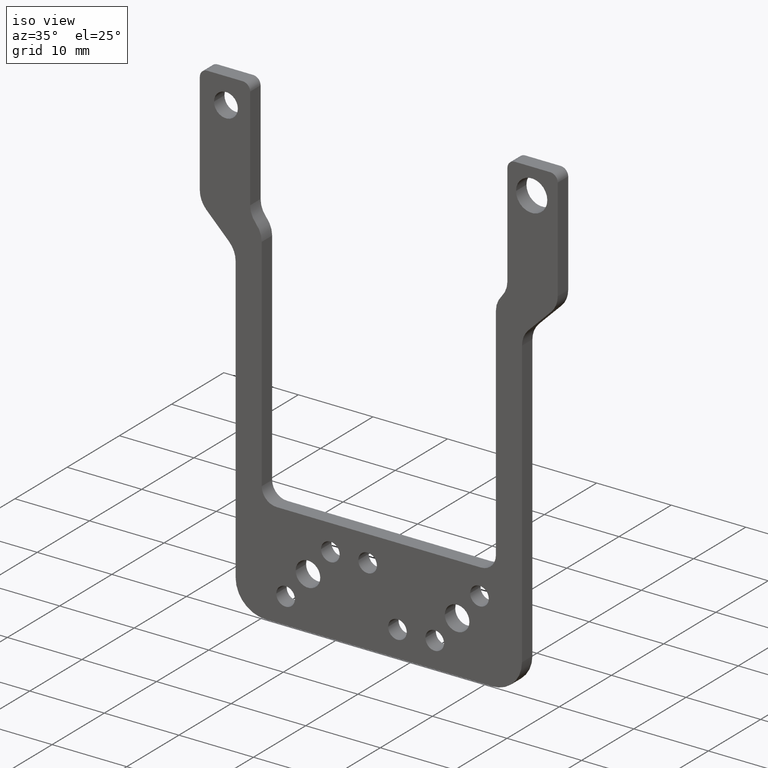
[diagram: clean part render]
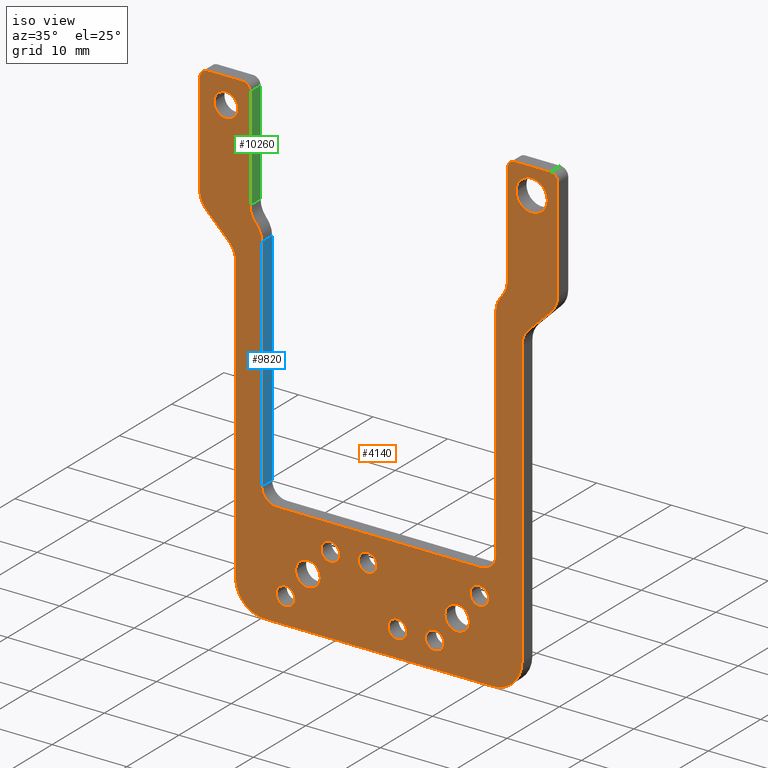
[diagram: same view with three faces highlighted in distinct colors, each labeled with its STEP entity id]
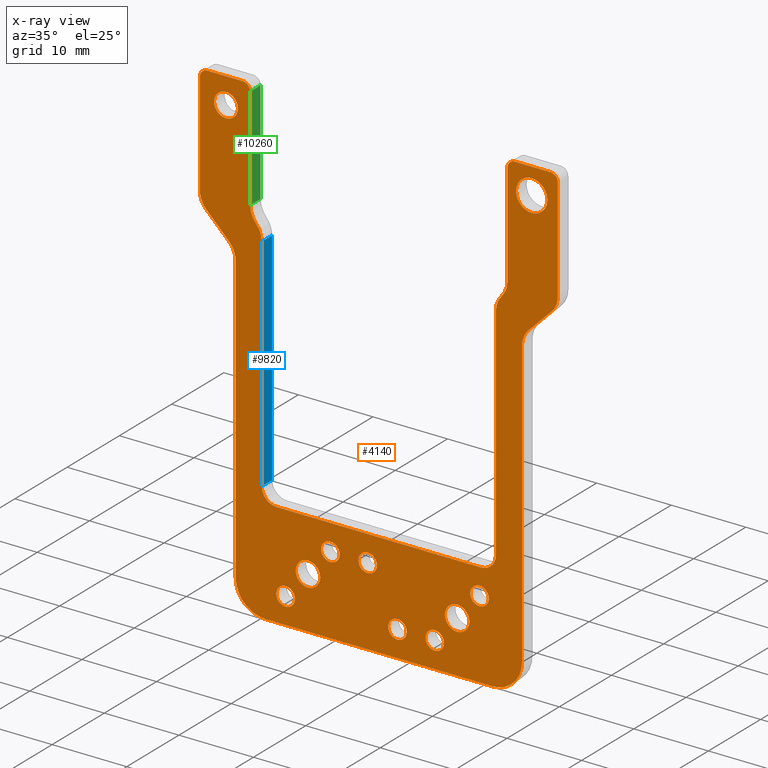
[diagram: x-ray of the same camera — body ghosted, the three highlighted faces saturated]
A machine part, iso view with three faces highlighted in distinct colors.
The next image is the same camera in x-ray (body ghosted, the three faces saturated) — at least one of them is partly hidden behind the body in this view.
Their STEP definitions:

[orange] entity #4140 — the highlighted planar face has unit normal (0, -1, -0).
#10=CARTESIAN_POINT('',(-14.519346833454,-1.02879474695072E-13,
-29.025690549749));
#20=DIRECTION('',(0.,1.,-3.51436609374757E-15));
#30=DIRECTION('',(1.,0.,0.));
#40=AXIS2_PLACEMENT_3D('',#10,#20,#30);
#50=PLANE('',#40);
#60=CARTESIAN_POINT('',(1.5,-1.77996623104301E-13,-50.3999999999996));
#70=DIRECTION('',(0.,1.,-3.51436609374757E-15));
#80=DIRECTION('',(1.,0.,0.));
#90=AXIS2_PLACEMENT_3D('',#60,#70,#80);
#100=CIRCLE('',#90,1.25);
#110=CARTESIAN_POINT('',(2.75,-1.77996506423028E-13,-50.3999999999996));
#120=VERTEX_POINT('',#110);
#130=CARTESIAN_POINT('',(0.249999999999996,-1.77996506423028E-13,
-50.3999999999996));
#140=VERTEX_POINT('',#130);
#150=EDGE_CURVE('',#120,#140,#100,.T.);
#160=ORIENTED_EDGE('',*,*,#150,.F.);
#170=EDGE_CURVE('',#140,#120,#100,.T.);
#180=ORIENTED_EDGE('',*,*,#170,.F.);
#190=EDGE_LOOP('',(#180,#160));
#200=FACE_BOUND('',#190,.T.);
#210=CARTESIAN_POINT('',(12.5,-2.02597185760534E-13,-57.3999999999994));
#220=DIRECTION('',(0.,1.,-3.51436609374757E-15));
#230=DIRECTION('',(1.,0.,0.));
#240=AXIS2_PLACEMENT_3D('',#210,#220,#230);
#250=CIRCLE('',#240,1.25);
#260=CARTESIAN_POINT('',(13.75,-2.02587946418475E-13,-57.3999999999994))
;
#270=VERTEX_POINT('',#260);
#280=CARTESIAN_POINT('',(11.25,-2.02587946418475E-13,-57.3999999999994))
;
#290=VERTEX_POINT('',#280);
#300=EDGE_CURVE('',#270,#290,#250,.T.);
#310=ORIENTED_EDGE('',*,*,#300,.F.);
#320=EDGE_CURVE('',#290,#270,#250,.T.);
#330=ORIENTED_EDGE('',*,*,#320,.F.);
#340=EDGE_LOOP('',(#330,#310));
#350=FACE_BOUND('',#340,.T.);
#360=CARTESIAN_POINT('',(9.5,-1.90296904432417E-13,-53.8999999999994));
#370=DIRECTION('',(0.,-1.,3.51436609374757E-15));
#380=DIRECTION('',(-1.,0.,-0.));
#390=AXIS2_PLACEMENT_3D('',#360,#370,#380);
#400=CIRCLE('',#390,1.65);
#410=CARTESIAN_POINT('',(7.85,-1.90292226420752E-13,-53.8999999999994));
#420=VERTEX_POINT('',#410);
#430=CARTESIAN_POINT('',(11.15,-1.90292226420752E-13,-53.8999999999994))
;
#440=VERTEX_POINT('',#430);
#450=EDGE_CURVE('',#420,#440,#400,.T.);
#460=ORIENTED_EDGE('',*,*,#450,.T.);
#470=EDGE_CURVE('',#440,#420,#400,.T.);
#480=ORIENTED_EDGE('',*,*,#470,.T.);
#490=EDGE_LOOP('',(#480,#460));
#500=FACE_BOUND('',#490,.T.);
#510=CARTESIAN_POINT('',(-13.5,-1.77996623104301E-13,-50.3999999999996))
;
#520=DIRECTION('',(0.,1.,-3.51436609374757E-15));
#530=DIRECTION('',(1.,0.,0.));
#540=AXIS2_PLACEMENT_3D('',#510,#520,#530);
#550=CIRCLE('',#540,1.25);
#560=CARTESIAN_POINT('',(-12.25,-1.77996506423028E-13,-50.3999999999996)
);
#570=VERTEX_POINT('',#560);
#580=CARTESIAN_POINT('',(-14.75,-1.77996506423028E-13,-50.3999999999996)
);
#590=VERTEX_POINT('',#580);
#600=EDGE_CURVE('',#570,#590,#550,.T.);
#610=ORIENTED_EDGE('',*,*,#600,.F.);
#620=EDGE_CURVE('',#590,#570,#550,.T.);
#630=ORIENTED_EDGE('',*,*,#620,.F.);
#640=EDGE_LOOP('',(#630,#610));
#650=FACE_BOUND('',#640,.T.);
#660=CARTESIAN_POINT('',(6.5,-1.77996623104301E-13,-50.3999999999996));
#670=DIRECTION('',(0.,1.,-3.51436609374757E-15));
#680=DIRECTION('',(1.,0.,0.));
#690=AXIS2_PLACEMENT_3D('',#660,#670,#680);
#700=CIRCLE('',#690,1.25);
#710=CARTESIAN_POINT('',(7.75,-1.77996506423028E-13,-50.3999999999996));
#720=VERTEX_POINT('',#710);
#730=CARTESIAN_POINT('',(5.25,-1.77996506423028E-13,-50.3999999999996));
#740=VERTEX_POINT('',#730);
#750=EDGE_CURVE('',#720,#740,#700,.T.);
#760=ORIENTED_EDGE('',*,*,#750,.F.);
#770=EDGE_CURVE('',#740,#720,#700,.T.);
#780=ORIENTED_EDGE('',*,*,#770,.F.);
#790=EDGE_LOOP('',(#780,#760));
#800=FACE_BOUND('',#790,.T.);
#810=CARTESIAN_POINT('',(-7.5,-2.02597185760534E-13,-57.3999999999994));
#820=DIRECTION('',(0.,1.,-3.51436609374757E-15));
#830=DIRECTION('',(1.,0.,0.));
#840=AXIS2_PLACEMENT_3D('',#810,#820,#830);
#850=CIRCLE('',#840,1.25);
#860=CARTESIAN_POINT('',(-6.25,-2.02587946418475E-13,-57.3999999999994))
;
#870=VERTEX_POINT('',#860);
#880=CARTESIAN_POINT('',(-8.75,-2.02587946418475E-13,-57.3999999999994))
;
#890=VERTEX_POINT('',#880);
#900=EDGE_CURVE('',#870,#890,#850,.T.);
#910=ORIENTED_EDGE('',*,*,#900,.F.);
#920=EDGE_CURVE('',#890,#870,#850,.T.);
#930=ORIENTED_EDGE('',*,*,#920,.F.);
#940=EDGE_LOOP('',(#930,#910));
#950=FACE_BOUND('',#940,.T.);
#960=CARTESIAN_POINT('',(-2.5,-2.02597185760534E-13,-57.3999999999994));
#970=DIRECTION('',(0.,1.,-3.51436609374757E-15));
#980=DIRECTION('',(1.,0.,0.));
#990=AXIS2_PLACEMENT_3D('',#960,#970,#980);
#1000=CIRCLE('',#990,1.25);
#1010=CARTESIAN_POINT('',(-1.25,-2.02587946418475E-13,-57.3999999999994)
);
#1020=VERTEX_POINT('',#1010);
#1030=CARTESIAN_POINT('',(-3.75,-2.02587946418475E-13,-57.3999999999994)
);
#1040=VERTEX_POINT('',#1030);
#1050=EDGE_CURVE('',#1020,#1040,#1000,.T.);
#1060=ORIENTED_EDGE('',*,*,#1050,.F.);
#1070=EDGE_CURVE('',#1040,#1020,#1000,.T.);
#1080=ORIENTED_EDGE('',*,*,#1070,.F.);
#1090=EDGE_LOOP('',(#1080,#1060));
#1100=FACE_BOUND('',#1090,.T.);
#1110=CARTESIAN_POINT('',(-10.5,-1.90296904432417E-13,-53.8999999999994)
);
#1120=DIRECTION('',(0.,-1.,3.51436609374757E-15));
#1130=DIRECTION('',(-1.,0.,-0.));
#1140=AXIS2_PLACEMENT_3D('',#1110,#1120,#1130);
#1150=CIRCLE('',#1140,1.65);
#1160=CARTESIAN_POINT('',(-12.15,-1.90292226420752E-13,-53.8999999999994
));
#1170=VERTEX_POINT('',#1160);
#1180=CARTESIAN_POINT('',(-8.85,-1.90292226420752E-13,-53.8999999999994)
);
#1190=VERTEX_POINT('',#1180);
#1200=EDGE_CURVE('',#1170,#1190,#1150,.T.);
#1210=ORIENTED_EDGE('',*,*,#1200,.T.);
#1220=EDGE_CURVE('',#1190,#1170,#1150,.T.);
#1230=ORIENTED_EDGE('',*,*,#1220,.T.);
#1240=EDGE_LOOP('',(#1230,#1210));
#1250=FACE_BOUND('',#1240,.T.);
#1260=CARTESIAN_POINT('',(20.5,-8.72571979425161E-16,
-3.5527136788005E-15));
#1270=DIRECTION('',(0.,1.,-3.51436609374757E-15));
#1280=DIRECTION('',(1.,0.,0.));
#1290=AXIS2_PLACEMENT_3D('',#1260,#1270,#1280);
#1300=CIRCLE('',#1290,1.6);
#1310=CARTESIAN_POINT('',(22.1,-8.72571979425161E-16,
-3.5527136788005E-15));
#1320=VERTEX_POINT('',#1310);
#1330=CARTESIAN_POINT('',(18.9,-8.72571979425162E-16,
-3.74865716666408E-15));
#1340=VERTEX_POINT('',#1330);
#1350=EDGE_CURVE('',#1320,#1340,#1300,.T.);
#1360=ORIENTED_EDGE('',*,*,#1350,.F.);
#1370=EDGE_CURVE('',#1340,#1320,#1300,.T.);
#1380=ORIENTED_EDGE('',*,*,#1370,.F.);
#1390=EDGE_LOOP('',(#1380,#1360));
#1400=FACE_BOUND('',#1390,.T.);
#1410=CARTESIAN_POINT('',(-20.5,-8.72571979425111E-16,
1.06581410364015E-14));
#1420=DIRECTION('',(0.,1.,-3.51436609374757E-15));
#1430=DIRECTION('',(1.,0.,0.));
#1440=AXIS2_PLACEMENT_3D('',#1410,#1420,#1430);
#1450=CIRCLE('',#1440,2.1);
#1460=CARTESIAN_POINT('',(-18.4,-8.72571979425111E-16,
1.06581410364015E-14));
#1470=VERTEX_POINT('',#1460);
#1480=CARTESIAN_POINT('',(-22.6,-8.72571979425112E-16,
1.04009652085806E-14));
#1490=VERTEX_POINT('',#1480);
#1500=EDGE_CURVE('',#1470,#1490,#1450,.T.);
#1510=ORIENTED_EDGE('',*,*,#1500,.F.);
#1520=EDGE_CURVE('',#1490,#1470,#1450,.T.);
#1530=ORIENTED_EDGE('',*,*,#1520,.F.);
#1540=EDGE_LOOP('',(#1530,#1510));
#1550=FACE_BOUND('',#1540,.T.);
#1560=CARTESIAN_POINT('',(-21.,-4.04350538537465E-14,-11.2573593128807))
;
#1570=DIRECTION('',(0.,-1.,3.51436609374757E-15));
#1580=DIRECTION('',(-1.,0.,-0.));
#1590=AXIS2_PLACEMENT_3D('',#1560,#1570,#1580);
#1600=CIRCLE('',#1590,3.);
#1610=CARTESIAN_POINT('',(-24.,-4.04350538537465E-14,-11.2573593128807))
;
#1620=VERTEX_POINT('',#1610);
#1630=CARTESIAN_POINT('',(-23.1213203435596,-4.78901501431295E-14,
-13.3786796564403));
#1640=VERTEX_POINT('',#1630);
#1650=EDGE_CURVE('',#1620,#1640,#1600,.T.);
#1660=ORIENTED_EDGE('',*,*,#1650,.F.);
#1670=CARTESIAN_POINT('',(-14.519346833454,-7.79066304868271E-14,
-21.980653166546));
#1680=DIRECTION('',(0.707106781186548,-2.48503209646098E-15,
-0.707106781186547));
#1690=VECTOR('',#1680,1.);
#1700=LINE('',#1670,#1690);
#1710=CARTESIAN_POINT('',(-20.0786796564404,-5.85831034093983E-14,
-16.4213203435596));
#1720=VERTEX_POINT('',#1710);
#1730=EDGE_CURVE('',#1640,#1720,#1700,.T.);
#1740=ORIENTED_EDGE('',*,*,#1730,.F.);
#1750=CARTESIAN_POINT('',(-22.2,-6.60381996987813E-14,-18.5426406871193)
);
#1760=DIRECTION('',(0.,-1.,3.51436609374757E-15));
#1770=DIRECTION('',(-1.,0.,-0.));
#1780=AXIS2_PLACEMENT_3D('',#1750,#1760,#1770);
#1790=CIRCLE('',#1780,3.);
#1800=CARTESIAN_POINT('',(-19.2,-6.60381996987813E-14,-18.5426406871193)
);
#1810=VERTEX_POINT('',#1800);
#1820=EDGE_CURVE('',#1810,#1720,#1790,.T.);
#1830=ORIENTED_EDGE('',*,*,#1820,.T.);
#1840=CARTESIAN_POINT('',(-19.2,-1.02879474695072E-13,-29.025690549749))
;
#1850=DIRECTION('',(0.,-3.51436609374757E-15,-1.));
#1860=VECTOR('',#1850,1.);
#1870=LINE('',#1840,#1860);
#1880=CARTESIAN_POINT('',(-19.2,-2.0084000271366E-13,-56.8999999999994))
;
#1890=VERTEX_POINT('',#1880);
#1900=EDGE_CURVE('',#1810,#1890,#1870,.T.);
#1910=ORIENTED_EDGE('',*,*,#1900,.F.);
#1920=CARTESIAN_POINT('',(-15.2,-2.0084000271366E-13,-56.8999999999994))
;
#1930=DIRECTION('',(0.,1.,-3.51436609374757E-15));
#1940=DIRECTION('',(1.,0.,0.));
#1950=AXIS2_PLACEMENT_3D('',#1920,#1930,#1940);
#1960=CIRCLE('',#1950,4.);
#1970=CARTESIAN_POINT('',(-15.2,-2.1489746708865E-13,-60.8999999999994))
;
#1980=VERTEX_POINT('',#1970);
#1990=EDGE_CURVE('',#1980,#1890,#1960,.T.);
#2000=ORIENTED_EDGE('',*,*,#1990,.T.);
#2010=CARTESIAN_POINT('',(-14.519346833454,-2.1489746708865E-13,
-60.8999999999994));
#2020=DIRECTION('',(1.,0.,0.));
#2030=VECTOR('',#2020,1.);
#2040=LINE('',#2010,#2030);
#2050=CARTESIAN_POINT('',(15.2,-2.1489746708865E-13,-60.8999999999994));
#2060=VERTEX_POINT('',#2050);
#2070=EDGE_CURVE('',#1980,#2060,#2040,.T.);
#2080=ORIENTED_EDGE('',*,*,#2070,.F.);
#2090=CARTESIAN_POINT('',(15.2,-2.0084000271366E-13,-56.8999999999994));
#2100=DIRECTION('',(0.,1.,-3.51436609374757E-15));
#2110=DIRECTION('',(1.,0.,0.));
#2120=AXIS2_PLACEMENT_3D('',#2090,#2100,#2110);
#2130=CIRCLE('',#2120,4.);
#2140=CARTESIAN_POINT('',(19.2,-2.0084000271366E-13,-56.8999999999994));
#2150=VERTEX_POINT('',#2140);
#2160=EDGE_CURVE('',#2150,#2060,#2130,.T.);
#2170=ORIENTED_EDGE('',*,*,#2160,.T.);
#2180=CARTESIAN_POINT('',(19.2,-1.02879474695072E-13,-29.025690549749));
#2190=DIRECTION('',(0.,3.51436609374757E-15,1.));
#2200=VECTOR('',#2190,1.);
#2210=LINE('',#2180,#2200);
#2220=CARTESIAN_POINT('',(19.2,-6.60381996987813E-14,-18.5426406871193))
;
#2230=VERTEX_POINT('',#2220);
#2240=EDGE_CURVE('',#2150,#2230,#2210,.T.);
#2250=ORIENTED_EDGE('',*,*,#2240,.F.);
#2260=CARTESIAN_POINT('',(22.2,-6.60381996987813E-14,-18.5426406871193))
;
#2270=DIRECTION('',(0.,-1.,3.51436609374757E-15));
#2280=DIRECTION('',(-1.,0.,-0.));
#2290=AXIS2_PLACEMENT_3D('',#2260,#2270,#2280);
#2300=CIRCLE('',#2290,3.);
#2310=CARTESIAN_POINT('',(20.0786796564404,-5.85831034093983E-14,
-16.4213203435596));
#2320=VERTEX_POINT('',#2310);
#2330=EDGE_CURVE('',#2320,#2230,#2300,.T.);
#2340=ORIENTED_EDGE('',*,*,#2330,.T.);
#2350=CARTESIAN_POINT('',(1.47430945025101,-1.23751667558025E-13,
-35.025690549749));
#2360=DIRECTION('',(-0.707106781186548,-2.48503209646099E-15,
-0.707106781186548));
#2370=VECTOR('',#2360,1.);
#2380=LINE('',#2350,#2370);
#2390=CARTESIAN_POINT('',(23.1213203435597,-4.78901501431294E-14,
-13.3786796564403));
#2400=VERTEX_POINT('',#2390);
#2410=EDGE_CURVE('',#2400,#2320,#2380,.T.);
#2420=ORIENTED_EDGE('',*,*,#2410,.T.);
#2430=CARTESIAN_POINT('',(21.,-4.04350538537465E-14,-11.2573593128807));
#2440=DIRECTION('',(0.,1.,-3.51436609374757E-15));
#2450=DIRECTION('',(1.,0.,0.));
#2460=AXIS2_PLACEMENT_3D('',#2430,#2440,#2450);
#2470=CIRCLE('',#2460,3.);
#2480=CARTESIAN_POINT('',(24.,-4.04350538537465E-14,-11.2573593128807));
#2490=VERTEX_POINT('',#2480);
#2500=EDGE_CURVE('',#2490,#2400,#2470,.T.);
#2510=ORIENTED_EDGE('',*,*,#2500,.T.);
#2520=CARTESIAN_POINT('',(24.,1.14277093486914E-14,3.50000000000001));
#2530=DIRECTION('',(0.,-3.51436609374757E-15,-1.));
#2540=VECTOR('',#2530,1.);
#2550=LINE('',#2520,#2540);
#2560=CARTESIAN_POINT('',(24.,7.9133432549438E-15,2.50000000000001));
#2570=VERTEX_POINT('',#2560);
#2580=EDGE_CURVE('',#2570,#2490,#2550,.T.);
#2590=ORIENTED_EDGE('',*,*,#2580,.T.);
#2600=CARTESIAN_POINT('',(23.,7.9133432549438E-15,2.50000000000001));
#2610=DIRECTION('',(0.,1.,-3.51436609374757E-15));
#2620=DIRECTION('',(1.,0.,0.));
#2630=AXIS2_PLACEMENT_3D('',#2600,#2610,#2620);
#2640=CIRCLE('',#2630,1.);
#2650=CARTESIAN_POINT('',(23.,1.14277093486914E-14,3.50000000000001));
#2660=VERTEX_POINT('',#2650);
#2670=EDGE_CURVE('',#2660,#2570,#2640,.T.);
#2680=ORIENTED_EDGE('',*,*,#2670,.T.);
#2690=CARTESIAN_POINT('',(17.25,1.14277093486914E-14,3.50000000000001));
#2700=DIRECTION('',(1.,0.,0.));
#2710=VECTOR('',#2700,1.);
#2720=LINE('',#2690,#2710);
#2730=CARTESIAN_POINT('',(18.25,1.14277093486914E-14,3.50000000000001));
#2740=VERTEX_POINT('',#2730);
#2750=EDGE_CURVE('',#2740,#2660,#2720,.T.);
#2760=ORIENTED_EDGE('',*,*,#2750,.T.);
#2770=CARTESIAN_POINT('',(18.25,7.9133432549438E-15,2.50000000000001));
#2780=DIRECTION('',(0.,1.,-3.51436609374757E-15));
#2790=DIRECTION('',(1.,0.,0.));
#2800=AXIS2_PLACEMENT_3D('',#2770,#2780,#2790);
#2810=CIRCLE('',#2800,1.);
#2820=CARTESIAN_POINT('',(17.25,7.9133432549438E-15,2.50000000000001));
#2830=VERTEX_POINT('',#2820);
#2840=EDGE_CURVE('',#2830,#2740,#2810,.T.);
#2850=ORIENTED_EDGE('',*,*,#2840,.T.);
#2860=CARTESIAN_POINT('',(17.25,1.14277093486914E-14,3.50000000000001));
#2870=DIRECTION('',(0.,-3.51436609374757E-15,-1.));
#2880=VECTOR('',#2870,1.);
#2890=LINE('',#2860,#2880);
#2900=CARTESIAN_POINT('',(17.25,-4.04725507051159E-14,-11.2680289045991)
);
#2910=VERTEX_POINT('',#2900);
#2920=EDGE_CURVE('',#2830,#2910,#2890,.T.);
#2930=ORIENTED_EDGE('',*,*,#2920,.F.);
#2940=CARTESIAN_POINT('',(14.25,-4.04725507051159E-14,-11.2680289045991)
);
#2950=DIRECTION('',(0.,-1.,3.51436609374757E-15));
#2960=DIRECTION('',(-1.,0.,-0.));
#2970=AXIS2_PLACEMENT_3D('',#2940,#2950,#2960);
#2980=CIRCLE('',#2970,3.);
#2990=CARTESIAN_POINT('',(16.475,-4.75445302996088E-14,-13.2803347958592
));
#3000=VERTEX_POINT('',#2990);
#3010=EDGE_CURVE('',#3000,#2910,#2980,.T.);
#3020=ORIENTED_EDGE('',*,*,#3010,.T.);
#3030=CARTESIAN_POINT('',(18.7,-5.46165098941017E-14,-15.2926406871193))
;
#3040=DIRECTION('',(0.,-1.,3.51436609374757E-15));
#3050=DIRECTION('',(-1.,0.,-0.));
#3060=AXIS2_PLACEMENT_3D('',#3030,#3040,#3050);
#3070=CIRCLE('',#3060,3.);
#3080=CARTESIAN_POINT('',(15.7,-5.46165098941017E-14,-15.2926406871193))
;
#3090=VERTEX_POINT('',#3080);
#3100=EDGE_CURVE('',#3000,#3090,#3070,.T.);
#3110=ORIENTED_EDGE('',*,*,#3100,.F.);
#3120=CARTESIAN_POINT('',(15.7,-3.43683076926286E-14,-9.53108891324553))
;
#3130=DIRECTION('',(0.,-3.51436609374757E-15,-1.));
#3140=VECTOR('',#3130,1.);
#3150=LINE('',#3120,#3140);
#3160=CARTESIAN_POINT('',(15.7,-1.5866760958869E-13,-44.8999999999996));
#3170=VERTEX_POINT('',#3160);
#3180=EDGE_CURVE('',#3090,#3170,#3150,.T.);
#3190=ORIENTED_EDGE('',*,*,#3180,.F.);
#3200=CARTESIAN_POINT('',(13.7,-1.5866760958869E-13,-44.8999999999996));
#3210=DIRECTION('',(0.,-1.,3.51436609374757E-15));
#3220=DIRECTION('',(-1.,0.,-0.));
#3230=AXIS2_PLACEMENT_3D('',#3200,#3210,#3220);
#3240=CIRCLE('',#3230,2.);
#3250=CARTESIAN_POINT('',(13.7,-1.65696341776185E-13,-46.8999999999996))
;
#3260=VERTEX_POINT('',#3250);
#3270=EDGE_CURVE('',#3260,#3170,#3240,.T.);
#3280=ORIENTED_EDGE('',*,*,#3270,.T.);
#3290=CARTESIAN_POINT('',(-15.5,-1.65830682704287E-13,-46.8999999999996)
);
#3300=DIRECTION('',(1.,0.,0.));
#3310=VECTOR('',#3300,1.);
#3320=LINE('',#3290,#3310);
#3330=CARTESIAN_POINT('',(-13.7,-1.65696341776185E-13,-46.8999999999996)
);
#3340=VERTEX_POINT('',#3330);
#3350=EDGE_CURVE('',#3340,#3260,#3320,.T.);
#3360=ORIENTED_EDGE('',*,*,#3350,.T.);
#3370=CARTESIAN_POINT('',(-13.7,-1.5866760958869E-13,-44.8999999999996))
;
#3380=DIRECTION('',(0.,-1.,3.51436609374757E-15));
#3390=DIRECTION('',(-1.,0.,-0.));
#3400=AXIS2_PLACEMENT_3D('',#3370,#3380,#3390);
#3410=CIRCLE('',#3400,2.);
#3420=CARTESIAN_POINT('',(-15.7,-1.5866760958869E-13,-44.8999999999996))
;
#3430=VERTEX_POINT('',#3420);
#3440=EDGE_CURVE('',#3430,#3340,#3410,.T.);
#3450=ORIENTED_EDGE('',*,*,#3440,.T.);
#3460=CARTESIAN_POINT('',(-15.7,-3.43683076926286E-14,-9.53108891324553)
);
#3470=DIRECTION('',(1.1119514927998E-17,-3.51436609374757E-15,-1.));
#3480=VECTOR('',#3470,1.);
#3490=LINE('',#3460,#3480);
#3500=CARTESIAN_POINT('',(-15.7,-5.45790130427323E-14,-15.2819710954009)
);
#3510=VERTEX_POINT('',#3500);
#3520=EDGE_CURVE('',#3510,#3430,#3490,.T.);
#3530=ORIENTED_EDGE('',*,*,#3520,.T.);
#3540=CARTESIAN_POINT('',(-18.7,-5.45790130427323E-14,-15.2819710954009)
);
#3550=DIRECTION('',(0.,-1.,3.51436609374757E-15));
#3560=DIRECTION('',(-1.,0.,-0.));
#3570=AXIS2_PLACEMENT_3D('',#3540,#3550,#3560);
#3580=CIRCLE('',#3570,3.);
#3590=CARTESIAN_POINT('',(-16.475,-4.75070334482394E-14,
-13.2696652041408));
#3600=VERTEX_POINT('',#3590);
#3610=EDGE_CURVE('',#3510,#3600,#3580,.T.);
#3620=ORIENTED_EDGE('',*,*,#3610,.F.);
#3630=CARTESIAN_POINT('',(-14.25,-4.04350538537465E-14,-11.2573593128807
));
#3640=DIRECTION('',(0.,-1.,3.51436609374757E-15));
#3650=DIRECTION('',(-1.,0.,-0.));
#3660=AXIS2_PLACEMENT_3D('',#3630,#3640,#3650);
#3670=CIRCLE('',#3660,3.);
#3680=CARTESIAN_POINT('',(-17.25,-4.04350538537465E-14,-11.2573593128807
));
#3690=VERTEX_POINT('',#3680);
#3700=EDGE_CURVE('',#3690,#3600,#3670,.T.);
#3710=ORIENTED_EDGE('',*,*,#3700,.T.);
#3720=CARTESIAN_POINT('',(-17.25,1.14277093486914E-14,3.50000000000001))
;
#3730=DIRECTION('',(0.,-3.51436609374757E-15,-1.));
#3740=VECTOR('',#3730,1.);
#3750=LINE('',#3720,#3740);
#3760=CARTESIAN_POINT('',(-17.25,7.9133432549438E-15,2.50000000000001));
#3770=VERTEX_POINT('',#3760);
#3780=EDGE_CURVE('',#3770,#3690,#3750,.T.);
#3790=ORIENTED_EDGE('',*,*,#3780,.T.);
#3800=CARTESIAN_POINT('',(-18.25,7.9133432549438E-15,2.50000000000001));
#3810=DIRECTION('',(0.,1.,-3.51436609374757E-15));
#3820=DIRECTION('',(1.,0.,0.));
#3830=AXIS2_PLACEMENT_3D('',#3800,#3810,#3820);
#3840=CIRCLE('',#3830,1.);
#3850=CARTESIAN_POINT('',(-18.25,1.14277093486914E-14,3.50000000000001))
;
#3860=VERTEX_POINT('',#3850);
#3870=EDGE_CURVE('',#3860,#3770,#3840,.T.);
#3880=ORIENTED_EDGE('',*,*,#3870,.T.);
#3890=CARTESIAN_POINT('',(-24.,1.14277093486914E-14,3.50000000000001));
#3900=DIRECTION('',(1.,0.,0.));
#3910=VECTOR('',#3900,1.);
#3920=LINE('',#3890,#3910);
#3930=CARTESIAN_POINT('',(-23.,1.14277093486914E-14,3.50000000000001));
#3940=VERTEX_POINT('',#3930);
#3950=EDGE_CURVE('',#3940,#3860,#3920,.T.);
#3960=ORIENTED_EDGE('',*,*,#3950,.T.);
#3970=CARTESIAN_POINT('',(-23.,7.9133432549438E-15,2.50000000000001));
#3980=DIRECTION('',(0.,1.,-3.51436609374757E-15));
#3990=DIRECTION('',(1.,0.,0.));
#4000=AXIS2_PLACEMENT_3D('',#3970,#3980,#3990);
#4010=CIRCLE('',#4000,1.);
#4020=CARTESIAN_POINT('',(-24.,7.9133432549438E-15,2.50000000000001));
#4030=VERTEX_POINT('',#4020);
#4040=EDGE_CURVE('',#4030,#3940,#4010,.T.);
#4050=ORIENTED_EDGE('',*,*,#4040,.T.);
#4060=CARTESIAN_POINT('',(-24.,1.14277093486914E-14,3.50000000000001));
#4070=DIRECTION('',(0.,-3.51436609374757E-15,-1.));
#4080=VECTOR('',#4070,1.);
#4090=LINE('',#4060,#4080);
#4100=EDGE_CURVE('',#4030,#1620,#4090,.T.);
#4110=ORIENTED_EDGE('',*,*,#4100,.F.);
#4120=EDGE_LOOP('',(#4110,#4050,#3960,#3880,#3790,#3710,#3620,#3530,
#3450,#3360,#3280,#3190,#3110,#3020,#2930,#2850,#2760,#2680,#2590,#2510,
#2420,#2340,#2250,#2170,#2080,#2000,#1910,#1830,#1740,#1660));
#4130=FACE_OUTER_BOUND('',#4120,.T.);
#4140=ADVANCED_FACE('',(#200,#350,#500,#650,#800,#950,#1100,#1250,#1400,
#1550,#4130),#50,.T.);

[blue] entity #9820 — the highlighted planar face has unit normal (-1, 0, 0).
#3080=CARTESIAN_POINT('',(15.7,-5.46165098941017E-14,-15.2926406871193))
;
#3090=VERTEX_POINT('',#3080);
#3120=CARTESIAN_POINT('',(15.7,-3.43683076926286E-14,-9.53108891324553))
;
#3130=DIRECTION('',(0.,-3.51436609374757E-15,-1.));
#3140=VECTOR('',#3130,1.);
#3150=LINE('',#3120,#3140);
#3160=CARTESIAN_POINT('',(15.7,-1.5866760958869E-13,-44.8999999999996));
#3170=VERTEX_POINT('',#3160);
#3180=EDGE_CURVE('',#3090,#3170,#3150,.T.);
#6710=CARTESIAN_POINT('',(15.7,-2.00000000000016,-44.8999999999996));
#6720=VERTEX_POINT('',#6710);
#6750=CARTESIAN_POINT('',(15.7,-2.00000000000003,-9.53108891324552));
#6760=DIRECTION('',(0.,-3.51436609374757E-15,-1.));
#6770=VECTOR('',#6760,1.);
#6780=LINE('',#6750,#6770);
#6790=CARTESIAN_POINT('',(15.7,-2.00000000000005,-15.2926406871193));
#6800=VERTEX_POINT('',#6790);
#6810=EDGE_CURVE('',#6800,#6720,#6780,.T.);
#9610=CARTESIAN_POINT('',(15.7,-3.43683076926286E-14,-9.53108891324553))
;
#9620=DIRECTION('',(1.,0.,-0.));
#9630=DIRECTION('',(0.,3.51436609374757E-15,1.));
#9640=AXIS2_PLACEMENT_3D('',#9610,#9620,#9630);
#9650=PLANE('',#9640);
#9660=CARTESIAN_POINT('',(15.7,-5.46165098941017E-14,-15.2926406871193))
;
#9670=DIRECTION('',(0.,1.,-3.51436609374757E-15));
#9680=VECTOR('',#9670,1.);
#9690=LINE('',#9660,#9680);
#9700=EDGE_CURVE('',#6800,#3090,#9690,.T.);
#9710=ORIENTED_EDGE('',*,*,#9700,.T.);
#9720=ORIENTED_EDGE('',*,*,#6810,.F.);
#9730=CARTESIAN_POINT('',(15.7,-1.5866760958869E-13,-44.8999999999996));
#9740=DIRECTION('',(0.,-1.,3.51436609374757E-15));
#9750=VECTOR('',#9740,1.);
#9760=LINE('',#9730,#9750);
#9770=EDGE_CURVE('',#3170,#6720,#9760,.T.);
#9780=ORIENTED_EDGE('',*,*,#9770,.T.);
#9790=ORIENTED_EDGE('',*,*,#3180,.T.);
#9800=EDGE_LOOP('',(#9790,#9780,#9720,#9710));
#9810=FACE_OUTER_BOUND('',#9800,.T.);
#9820=ADVANCED_FACE('',(#9810),#9650,.F.);

[green] entity #10260 — the highlighted planar face has unit normal (-1, 0, 0).
#2820=CARTESIAN_POINT('',(17.25,7.9133432549438E-15,2.50000000000001));
#2830=VERTEX_POINT('',#2820);
#2860=CARTESIAN_POINT('',(17.25,1.14277093486914E-14,3.50000000000001));
#2870=DIRECTION('',(0.,-3.51436609374757E-15,-1.));
#2880=VECTOR('',#2870,1.);
#2890=LINE('',#2860,#2880);
#2900=CARTESIAN_POINT('',(17.25,-4.04725507051159E-14,-11.2680289045991)
);
#2910=VERTEX_POINT('',#2900);
#2920=EDGE_CURVE('',#2830,#2910,#2890,.T.);
#6970=CARTESIAN_POINT('',(17.25,-2.00000000000004,-11.2680289045991));
#6980=VERTEX_POINT('',#6970);
#7010=CARTESIAN_POINT('',(17.25,-1.99999999999999,3.50000000000001));
#7020=DIRECTION('',(0.,-3.51436609374757E-15,-1.));
#7030=VECTOR('',#7020,1.);
#7040=LINE('',#7010,#7030);
#7050=CARTESIAN_POINT('',(17.25,-1.99999999999999,2.50000000000001));
#7060=VERTEX_POINT('',#7050);
#7070=EDGE_CURVE('',#7060,#6980,#7040,.T.);
#10050=CARTESIAN_POINT('',(17.25,1.14277093486914E-14,3.50000000000001))
;
#10060=DIRECTION('',(1.,0.,-0.));
#10070=DIRECTION('',(0.,3.51436609374757E-15,1.));
#10080=AXIS2_PLACEMENT_3D('',#10050,#10060,#10070);
#10090=PLANE('',#10080);
#10100=ORIENTED_EDGE('',*,*,#2920,.T.);
#10110=CARTESIAN_POINT('',(17.25,7.9133432549438E-15,2.50000000000001));
#10120=DIRECTION('',(0.,-1.,3.51436609374757E-15));
#10130=VECTOR('',#10120,1.);
#10140=LINE('',#10110,#10130);
#10150=EDGE_CURVE('',#2830,#7060,#10140,.T.);
#10160=ORIENTED_EDGE('',*,*,#10150,.F.);
#10170=ORIENTED_EDGE('',*,*,#7070,.F.);
#10180=CARTESIAN_POINT('',(17.25,-1.00000000000004,-11.2680289045991));
#10190=DIRECTION('',(0.,1.,-3.51436609374757E-15));
#10200=VECTOR('',#10190,1.);
#10210=LINE('',#10180,#10200);
#10220=EDGE_CURVE('',#6980,#2910,#10210,.T.);
#10230=ORIENTED_EDGE('',*,*,#10220,.F.);
#10240=EDGE_LOOP('',(#10230,#10170,#10160,#10100));
#10250=FACE_OUTER_BOUND('',#10240,.T.);
#10260=ADVANCED_FACE('',(#10250),#10090,.F.);